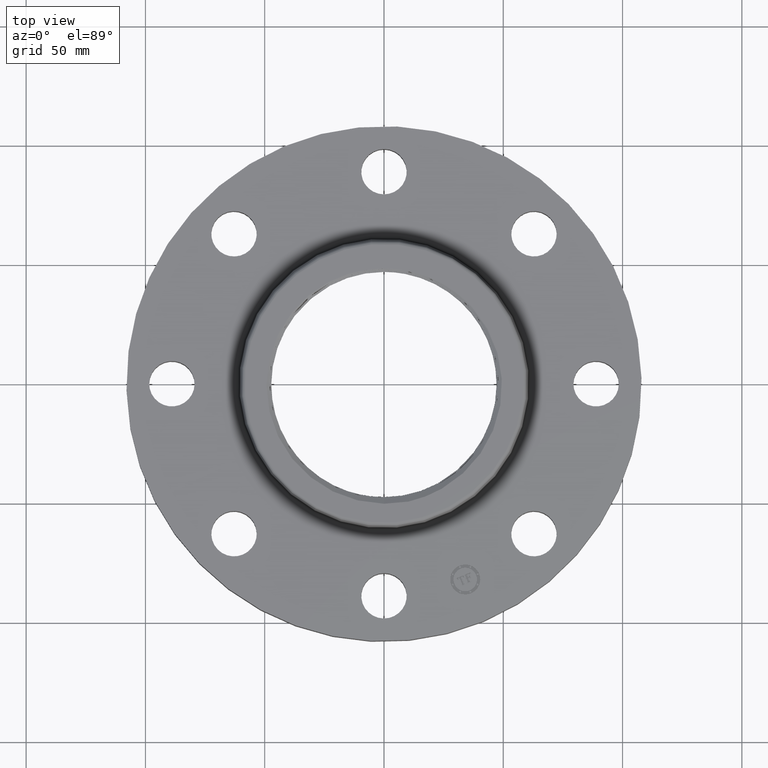
[diagram: clean part render]
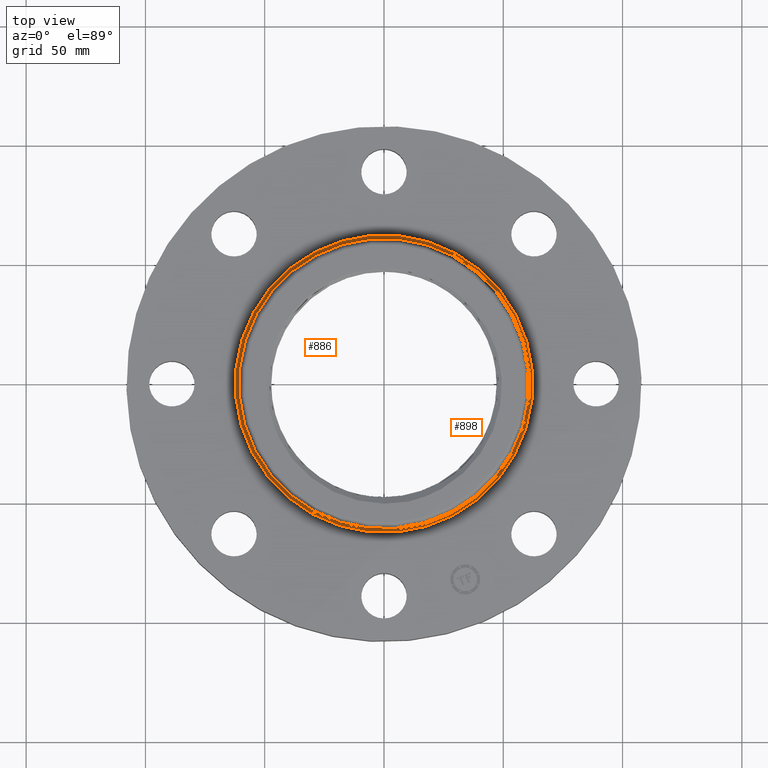
[diagram: same view with one multi-face feature highlighted, each face labeled with its STEP entity id]
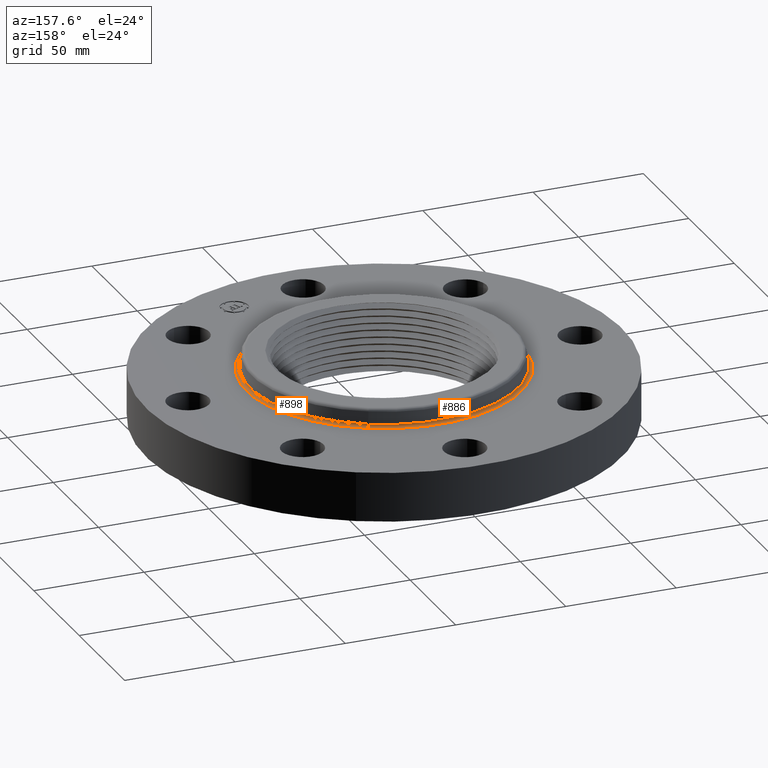
[diagram: same view with one multi-face feature highlighted, each face labeled with its STEP entity id]
A machine part, top view. The highlighted faces form ONE feature: a constant-radius fillet chain: 2 tangent blend faces with common blend radius 1.524 mm. The faces share edges in the B-rep.
A second angle (auxiliary view) of the same feature is appended — it is thin or edge-on in the first view.
Their STEP definitions:
[1] entity #886 (Torus):
#820=AXIS2_PLACEMENT_3D('Circle Axis2P3D',#818,#819,$) ;
#859=AXIS2_PLACEMENT_3D('Torus Axis2P3D',#856,#857,#858) ;
#863=AXIS2_PLACEMENT_3D('Circle Axis2P3D',#861,#862,$) ;
#872=AXIS2_PLACEMENT_3D('Circle Axis2P3D',#870,#871,$) ;
#877=AXIS2_PLACEMENT_3D('Circle Axis2P3D',#875,#876,$) ;
#818=CARTESIAN_POINT('Axis2P3D Location',(0.,0.,0.929581109344)) ;
#822=CARTESIAN_POINT('Vertex',(-1.14882704866,-2.10291380694,0.929581109344)) ;
#824=CARTESIAN_POINT('Vertex',(1.14882704866,2.10291380694,0.929581109344)) ;
#856=CARTESIAN_POINT('Axis2P3D Location',(0.,0.,0.940000000004)) ;
#861=CARTESIAN_POINT('Axis2P3D Location',(0.,0.,0.880000000004)) ;
#865=CARTESIAN_POINT('Vertex',(-1.1771555679,-2.1547688136,0.880000000004)) ;
#867=CARTESIAN_POINT('Vertex',(1.1771555679,2.1547688136,0.880000000004)) ;
#870=CARTESIAN_POINT('Axis2P3D Location',(-1.1771555679,-2.1547688136,0.940000000004)) ;
#875=CARTESIAN_POINT('Axis2P3D Location',(1.17715556791,2.1547688136,0.940000000004)) ;
#819=DIRECTION('Axis2P3D Direction',(0.,0.,-0.0393700787402)) ;
#857=DIRECTION('Axis2P3D Direction',(0.,0.,-0.0393700787402)) ;
#858=DIRECTION('Axis2P3D XDirection',(0.0188750212049,0.0345504945626,0.)) ;
#862=DIRECTION('Axis2P3D Direction',(0.,0.,-0.0393700787402)) ;
#871=DIRECTION('Axis2P3D Direction',(0.0345504945626,-0.0188750212049,0.)) ;
#876=DIRECTION('Axis2P3D Direction',(-0.0345504945626,0.0188750212049,0.)) ;
#881=ORIENTED_EDGE('',*,*,#869,.F.) ;
#882=ORIENTED_EDGE('',*,*,#874,.T.) ;
#883=ORIENTED_EDGE('',*,*,#826,.T.) ;
#884=ORIENTED_EDGE('',*,*,#879,.F.) ;
#886=ADVANCED_FACE('PartBody',(#885),#860,.F.) ;
#821=CIRCLE('generated circle',#820,2.3962575127) ;
#864=CIRCLE('generated circle',#863,2.45534597788) ;
#873=CIRCLE('generated circle',#872,0.0600000000002) ;
#878=CIRCLE('generated circle',#877,0.0600000000002) ;
#860=TOROIDAL_SURFACE('homeo Torus',#859,2.45534597788,0.0600000000002) ;
#826=EDGE_CURVE('',#823,#825,#821,.T.) ;
#869=EDGE_CURVE('',#866,#868,#864,.T.) ;
#874=EDGE_CURVE('',#866,#823,#873,.T.) ;
#879=EDGE_CURVE('',#868,#825,#878,.T.) ;
#880=EDGE_LOOP('',(#881,#882,#883,#884)) ;
#885=FACE_OUTER_BOUND('',#880,.T.) ;
#823=VERTEX_POINT('',#822) ;
#825=VERTEX_POINT('',#824) ;
#866=VERTEX_POINT('',#865) ;
#868=VERTEX_POINT('',#867) ;
[2] entity #898 (Torus):
#846=AXIS2_PLACEMENT_3D('Circle Axis2P3D',#844,#845,$) ;
#859=AXIS2_PLACEMENT_3D('Torus Axis2P3D',#856,#857,#858) ;
#872=AXIS2_PLACEMENT_3D('Circle Axis2P3D',#870,#871,$) ;
#877=AXIS2_PLACEMENT_3D('Circle Axis2P3D',#875,#876,$) ;
#889=AXIS2_PLACEMENT_3D('Circle Axis2P3D',#887,#888,$) ;
#822=CARTESIAN_POINT('Vertex',(-1.14882704866,-2.10291380694,0.929581109344)) ;
#824=CARTESIAN_POINT('Vertex',(1.14882704866,2.10291380694,0.929581109344)) ;
#844=CARTESIAN_POINT('Axis2P3D Location',(0.,0.,0.929581109344)) ;
#856=CARTESIAN_POINT('Axis2P3D Location',(0.,0.,0.940000000004)) ;
#865=CARTESIAN_POINT('Vertex',(-1.1771555679,-2.1547688136,0.880000000004)) ;
#867=CARTESIAN_POINT('Vertex',(1.1771555679,2.1547688136,0.880000000004)) ;
#870=CARTESIAN_POINT('Axis2P3D Location',(-1.1771555679,-2.1547688136,0.940000000004)) ;
#875=CARTESIAN_POINT('Axis2P3D Location',(1.17715556791,2.1547688136,0.940000000004)) ;
#887=CARTESIAN_POINT('Axis2P3D Location',(0.,0.,0.880000000004)) ;
#845=DIRECTION('Axis2P3D Direction',(0.,0.,-0.0393700787402)) ;
#857=DIRECTION('Axis2P3D Direction',(0.,0.,-0.0393700787402)) ;
#858=DIRECTION('Axis2P3D XDirection',(0.0188750212049,0.0345504945626,0.)) ;
#871=DIRECTION('Axis2P3D Direction',(0.0345504945626,-0.0188750212049,0.)) ;
#876=DIRECTION('Axis2P3D Direction',(-0.0345504945626,0.0188750212049,0.)) ;
#888=DIRECTION('Axis2P3D Direction',(0.,0.,-0.0393700787402)) ;
#893=ORIENTED_EDGE('',*,*,#891,.F.) ;
#894=ORIENTED_EDGE('',*,*,#879,.T.) ;
#895=ORIENTED_EDGE('',*,*,#848,.T.) ;
#896=ORIENTED_EDGE('',*,*,#874,.F.) ;
#898=ADVANCED_FACE('PartBody',(#897),#860,.F.) ;
#847=CIRCLE('generated circle',#846,2.3962575127) ;
#873=CIRCLE('generated circle',#872,0.0600000000002) ;
#878=CIRCLE('generated circle',#877,0.0600000000002) ;
#890=CIRCLE('generated circle',#889,2.45534597788) ;
#860=TOROIDAL_SURFACE('homeo Torus',#859,2.45534597788,0.0600000000002) ;
#848=EDGE_CURVE('',#825,#823,#847,.T.) ;
#874=EDGE_CURVE('',#866,#823,#873,.T.) ;
#879=EDGE_CURVE('',#868,#825,#878,.T.) ;
#891=EDGE_CURVE('',#868,#866,#890,.T.) ;
#892=EDGE_LOOP('',(#893,#894,#895,#896)) ;
#897=FACE_OUTER_BOUND('',#892,.T.) ;
#823=VERTEX_POINT('',#822) ;
#825=VERTEX_POINT('',#824) ;
#866=VERTEX_POINT('',#865) ;
#868=VERTEX_POINT('',#867) ;